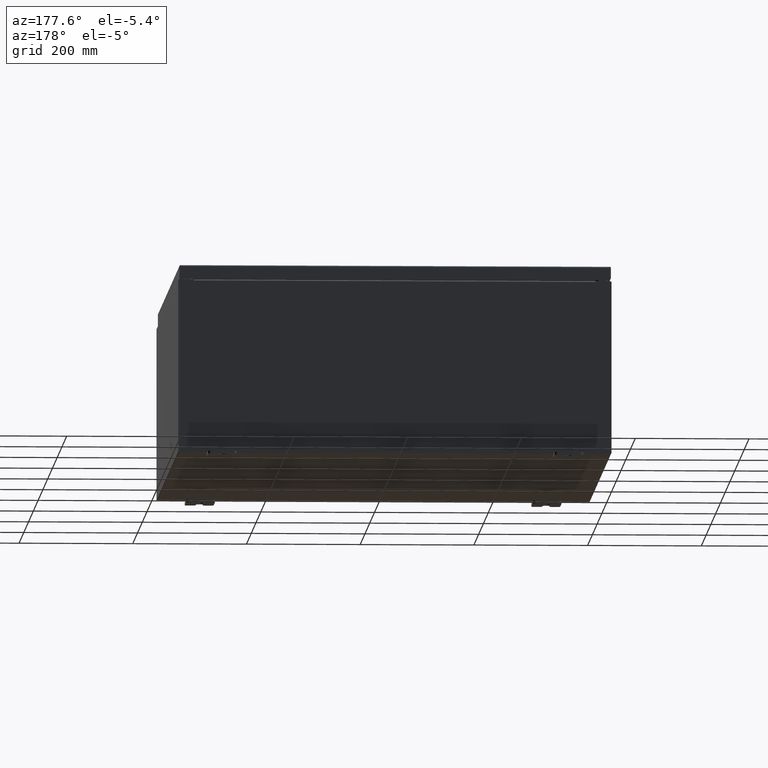
[diagram: clean part render]
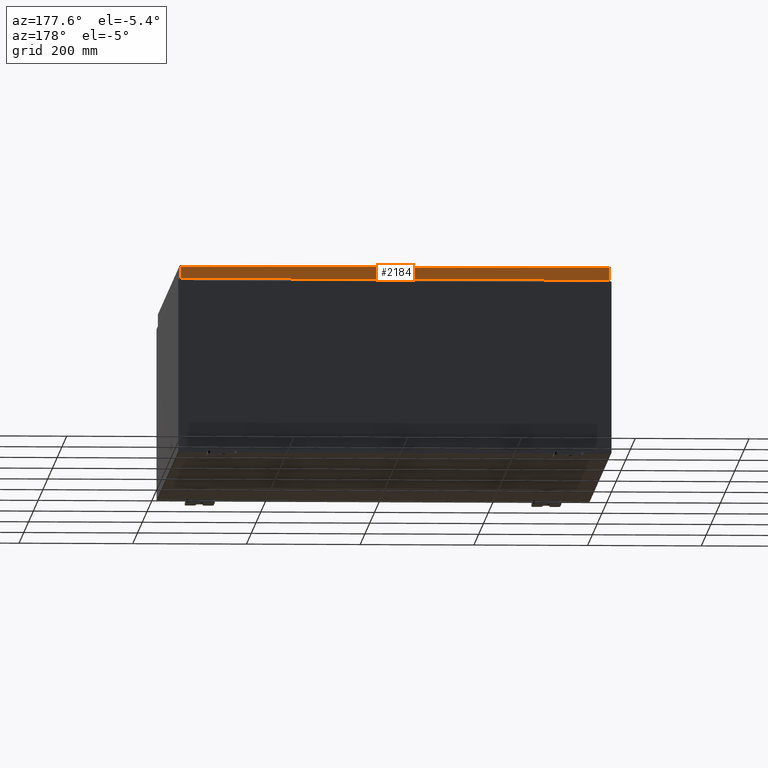
[diagram: same view with one face highlighted and labeled with its STEP entity id]
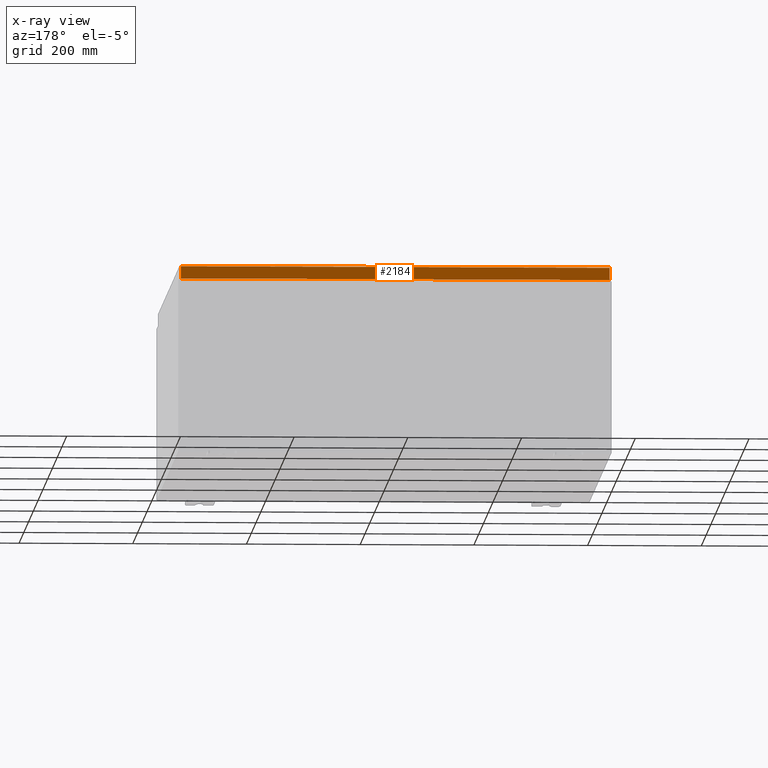
[diagram: x-ray of the same camera — body ghosted, the highlighted face saturated]
A machine part, auxiliary view. The second image highlights one B-rep face of the part: STEP entity #2184.
The next image is the same camera in x-ray: the body ghosted, the highlighted face saturated — about 0% of this face is hidden behind the body in this view.
In plain terms, the highlighted planar face has unit normal (0, -1, -0).
Its self-contained STEP definition (entity closure, byte-faithful):
#1001 = VECTOR ( 'NONE', #65757, 39.37007874015748100 ) ;
#2184 = ADVANCED_FACE ( 'NONE', ( #11684 ), #33357, .F. ) ;
#3093 = DIRECTION ( 'NONE',  ( 3.126209704330586500E-031, -1.000000000000000000, -2.532419924601855400E-015 ) ) ;
#5237 = DIRECTION ( 'NONE',  ( -1.000000000000000000, -3.126209704330586900E-031, -7.827163121213317500E-046 ) ) ;
#10261 = CARTESIAN_POINT ( 'NONE',  ( -14.84865786437627300, 17.93750000000000000, -0.08770000000000008300 ) ) ;
#10568 = EDGE_CURVE ( 'NONE', #20753, #12761, #28633, .T. ) ;
#10710 = EDGE_CURVE ( 'NONE', #20753, #42774, #23843, .T. ) ;
#11684 = FACE_OUTER_BOUND ( 'NONE', #28381, .T. ) ;
#12761 = VERTEX_POINT ( 'NONE', #10261 ) ;
#15194 = VECTOR ( 'NONE', #62735, 39.37007874015748100 ) ;
#18088 = EDGE_CURVE ( 'NONE', #54998, #42774, #50360, .T. ) ;
#18307 = ORIENTED_EDGE ( 'NONE', *, *, #10710, .T. ) ;
#19750 = AXIS2_PLACEMENT_3D ( 'NONE', #43361, #3093, #38682 ) ;
#19868 = CARTESIAN_POINT ( 'NONE',  ( -14.93750000000000200, 17.93750000000000000, -0.9377000000000035300 ) ) ;
#20753 = VERTEX_POINT ( 'NONE', #60697 ) ;
#21815 = DIRECTION ( 'NONE',  ( 0.0000000000000000000, 2.532419924601855400E-015, -1.000000000000000000 ) ) ;
#23843 = LINE ( 'NONE', #26687, #61331 ) ;
#26687 = CARTESIAN_POINT ( 'NONE',  ( 14.84865786437626800, 17.93750000000000000, 4.568609605355735900E-014 ) ) ;
#28091 = ORIENTED_EDGE ( 'NONE', *, *, #18088, .F. ) ;
#28381 = EDGE_LOOP ( 'NONE', ( #34982, #18307, #28091, #42768 ) ) ;
#28633 = LINE ( 'NONE', #40595, #54155 ) ;
#28706 = LINE ( 'NONE', #57607, #15194 ) ;
#33357 = PLANE ( 'NONE',  #19750 ) ;
#34982 = ORIENTED_EDGE ( 'NONE', *, *, #10568, .F. ) ;
#35004 = CARTESIAN_POINT ( 'NONE',  ( -14.84865786437627100, 17.93750000000000000, -0.9377000000000035300 ) ) ;
#38682 = DIRECTION ( 'NONE',  ( 0.0000000000000000000, 2.532419924601855400E-015, -1.000000000000000000 ) ) ;
#40595 = CARTESIAN_POINT ( 'NONE',  ( -14.93750000000000200, 17.93750000000000000, -0.08770000000000008300 ) ) ;
#42768 = ORIENTED_EDGE ( 'NONE', *, *, #59562, .F. ) ;
#42774 = VERTEX_POINT ( 'NONE', #54045 ) ;
#43361 = CARTESIAN_POINT ( 'NONE',  ( -5.607638657142989500E-030, 17.93750000000000000, 4.568609605355735900E-014 ) ) ;
#50360 = LINE ( 'NONE', #19868, #1001 ) ;
#54045 = CARTESIAN_POINT ( 'NONE',  ( 14.84865786437626900, 17.93750000000000000, -0.9376999999999996400 ) ) ;
#54155 = VECTOR ( 'NONE', #5237, 39.37007874015748100 ) ;
#54998 = VERTEX_POINT ( 'NONE', #35004 ) ;
#57607 = CARTESIAN_POINT ( 'NONE',  ( -14.84865786437627100, 17.93750000000000000, -0.07469999999999980800 ) ) ;
#59562 = EDGE_CURVE ( 'NONE', #12761, #54998, #28706, .T. ) ;
#60697 = CARTESIAN_POINT ( 'NONE',  ( 14.84865786437626900, 17.93750000000000000, -0.08770000000000008300 ) ) ;
#61331 = VECTOR ( 'NONE', #21815, 39.37007874015748100 ) ;
#62735 = DIRECTION ( 'NONE',  ( -0.0000000000000000000, 2.532419924601855400E-015, -1.000000000000000000 ) ) ;
#65757 = DIRECTION ( 'NONE',  ( 1.000000000000000000, -4.379057701015054300E-047, 1.234475243998914100E-016 ) ) ;